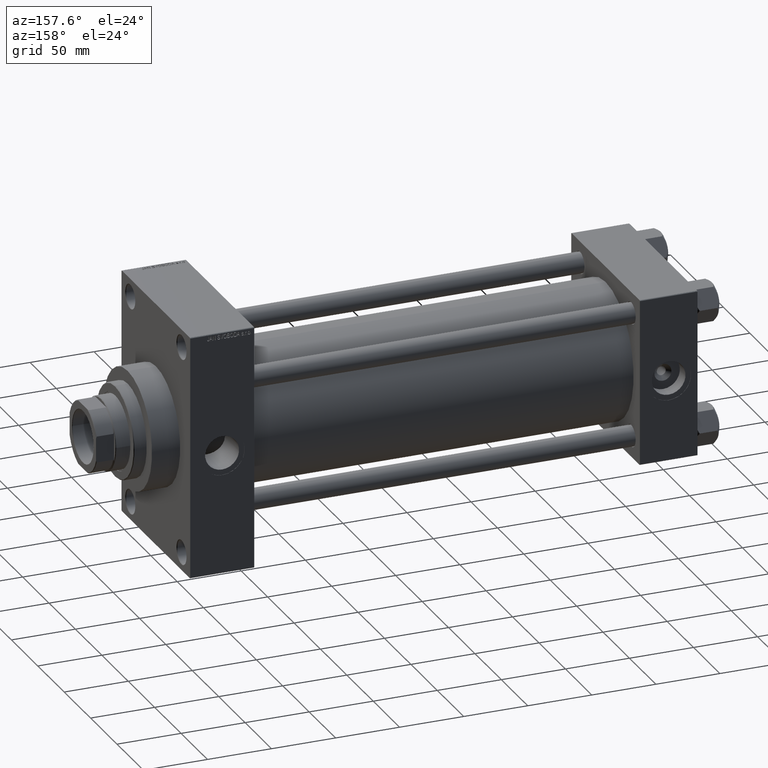
[diagram: clean part render]
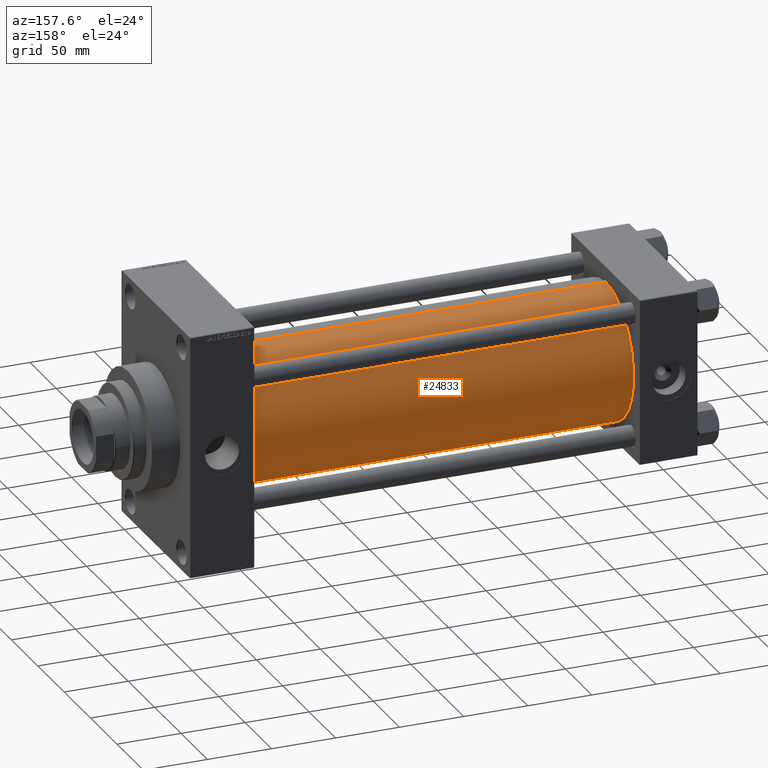
[diagram: same view with one face highlighted and labeled with its STEP entity id]
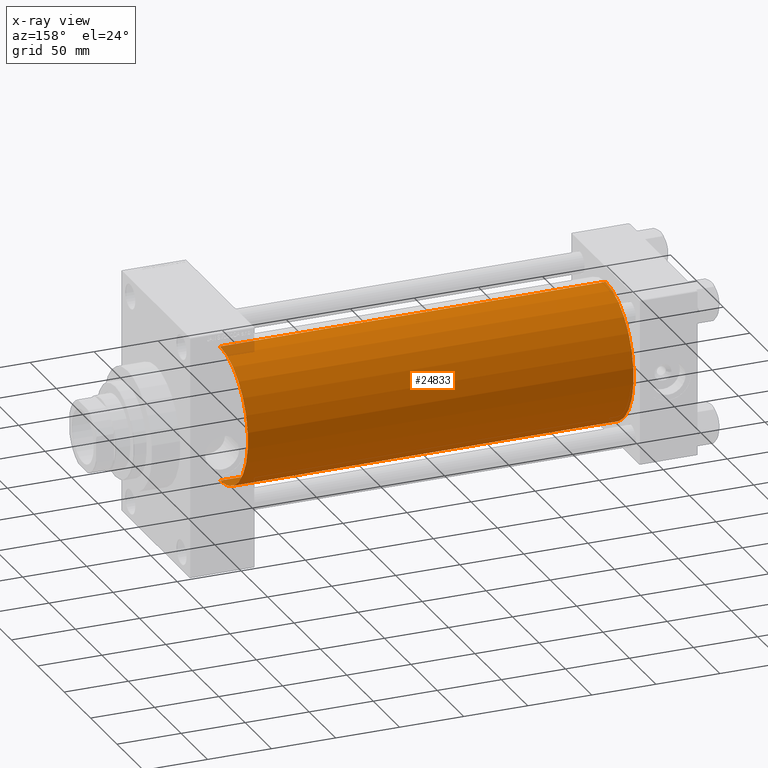
[diagram: x-ray of the same camera — body ghosted, the highlighted face saturated]
A machine part, auxiliary view. The second image highlights one B-rep face of the part: STEP entity #24833.
The next image is the same camera in x-ray: the body ghosted, the highlighted face saturated — about 1% of this face is hidden behind the body in this view.
In plain terms, the highlighted cylindrical surface (partial cylindrical patch) has radius 53 mm, axis along (-1, -0, -0).
Its self-contained STEP definition (entity closure, byte-faithful):
#472 = EDGE_CURVE ( 'NONE', #18003, #11775, #16889, .T. ) ;
#2084 = DIRECTION ( 'NONE',  ( 0.000000000000000000, 0.000000000000000000, -1.000000000000000000 ) ) ;
#5601 = VERTEX_POINT ( 'NONE', #30102 ) ;
#5653 = AXIS2_PLACEMENT_3D ( 'NONE', #25033, #29316, #2084 ) ;
#7393 = AXIS2_PLACEMENT_3D ( 'NONE', #9017, #24406, #8769 ) ;
#8769 = DIRECTION ( 'NONE',  ( 0.000000000000000000, 0.000000000000000000, 1.000000000000000000 ) ) ;
#9017 = CARTESIAN_POINT ( 'NONE',  ( 346.0000000000000000, -2.602085213965210642E-15, 0.000000000000000000 ) ) ;
#10684 = VECTOR ( 'NONE', #25190, 1000.000000000000000 ) ;
#11775 = VERTEX_POINT ( 'NONE', #13760 ) ;
#13734 = CIRCLE ( 'NONE', #5653, 53.00000000000000711 ) ;
#13760 = CARTESIAN_POINT ( 'NONE',  ( 44.99999999999998579, 3.888542821515762466E-15, -53.00000000000000711 ) ) ;
#14643 = CARTESIAN_POINT ( 'NONE',  ( 346.0000000000000000, 3.888542821515762466E-15, -53.00000000000000711 ) ) ;
#15672 = EDGE_CURVE ( 'NONE', #11775, #40280, #21665, .T. ) ;
#16352 = FACE_OUTER_BOUND ( 'NONE', #46918, .T. ) ;
#16889 = LINE ( 'NONE', #32250, #10684 ) ;
#17991 = DIRECTION ( 'NONE',  ( 0.000000000000000000, 0.000000000000000000, 1.000000000000000000 ) ) ;
#18003 = VERTEX_POINT ( 'NONE', #14643 ) ;
#20840 = ORIENTED_EDGE ( 'NONE', *, *, #15672, .T. ) ;
#21665 = CIRCLE ( 'NONE', #33721, 53.00000000000000711 ) ;
#22126 = EDGE_CURVE ( 'NONE', #18003, #5601, #13734, .T. ) ;
#24406 = DIRECTION ( 'NONE',  ( -1.000000000000000000, -0.000000000000000000, -0.000000000000000000 ) ) ;
#24833 = ADVANCED_FACE ( 'NONE', ( #16352 ), #47852, .T. ) ;
#25033 = CARTESIAN_POINT ( 'NONE',  ( 346.0000000000000000, -2.602085213965210642E-15, 0.000000000000000000 ) ) ;
#25190 = DIRECTION ( 'NONE',  ( -1.000000000000000000, -0.000000000000000000, -0.000000000000000000 ) ) ;
#29316 = DIRECTION ( 'NONE',  ( 1.000000000000000000, 0.000000000000000000, 0.000000000000000000 ) ) ;
#30102 = CARTESIAN_POINT ( 'NONE',  ( 346.0000000000000000, -2.602085213965210642E-15, 53.00000000000000711 ) ) ;
#32250 = CARTESIAN_POINT ( 'NONE',  ( 346.0000000000000000, 3.888542821515762466E-15, -53.00000000000000711 ) ) ;
#32613 = ORIENTED_EDGE ( 'NONE', *, *, #47554, .F. ) ;
#33721 = AXIS2_PLACEMENT_3D ( 'NONE', #45461, #49479, #17991 ) ;
#34889 = CARTESIAN_POINT ( 'NONE',  ( 44.99999999999998579, -2.602085213965210642E-15, 53.00000000000000711 ) ) ;
#40241 = LINE ( 'NONE', #44011, #49597 ) ;
#40280 = VERTEX_POINT ( 'NONE', #34889 ) ;
#40987 = DIRECTION ( 'NONE',  ( -1.000000000000000000, -0.000000000000000000, -0.000000000000000000 ) ) ;
#44011 = CARTESIAN_POINT ( 'NONE',  ( 346.0000000000000000, -2.602085213965210642E-15, 53.00000000000000711 ) ) ;
#44483 = ORIENTED_EDGE ( 'NONE', *, *, #472, .T. ) ;
#45461 = CARTESIAN_POINT ( 'NONE',  ( 44.99999999999998579, -2.602085213965210642E-15, 0.000000000000000000 ) ) ;
#46918 = EDGE_LOOP ( 'NONE', ( #48671, #44483, #20840, #32613 ) ) ;
#47554 = EDGE_CURVE ( 'NONE', #5601, #40280, #40241, .T. ) ;
#47852 = CYLINDRICAL_SURFACE ( 'NONE', #7393, 53.00000000000000711 ) ;
#48671 = ORIENTED_EDGE ( 'NONE', *, *, #22126, .F. ) ;
#49479 = DIRECTION ( 'NONE',  ( 1.000000000000000000, -0.000000000000000000, 0.000000000000000000 ) ) ;
#49597 = VECTOR ( 'NONE', #40987, 1000.000000000000000 ) ;